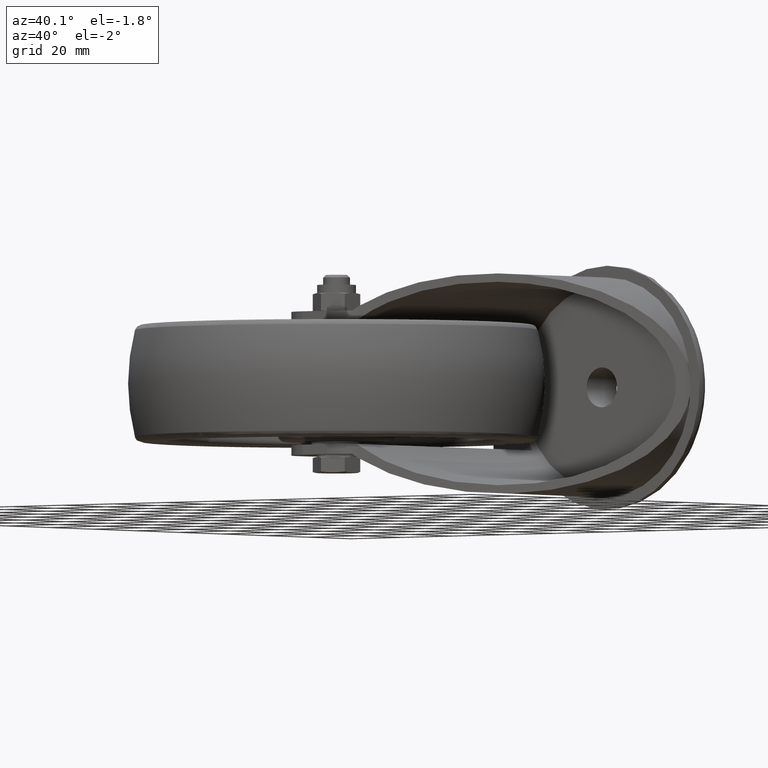
[diagram: clean part render]
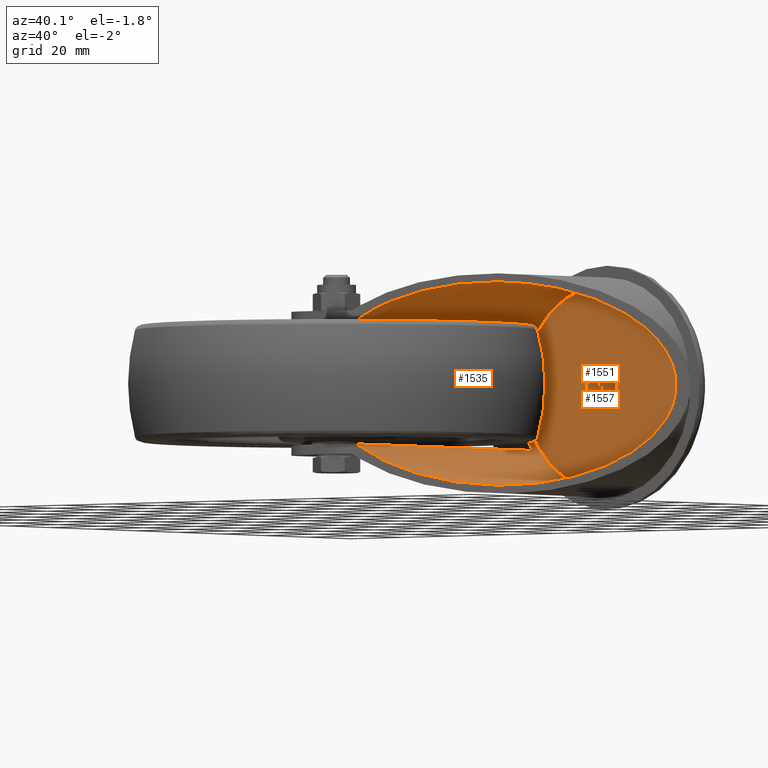
[diagram: same view with one multi-face feature highlighted, each face labeled with its STEP entity id]
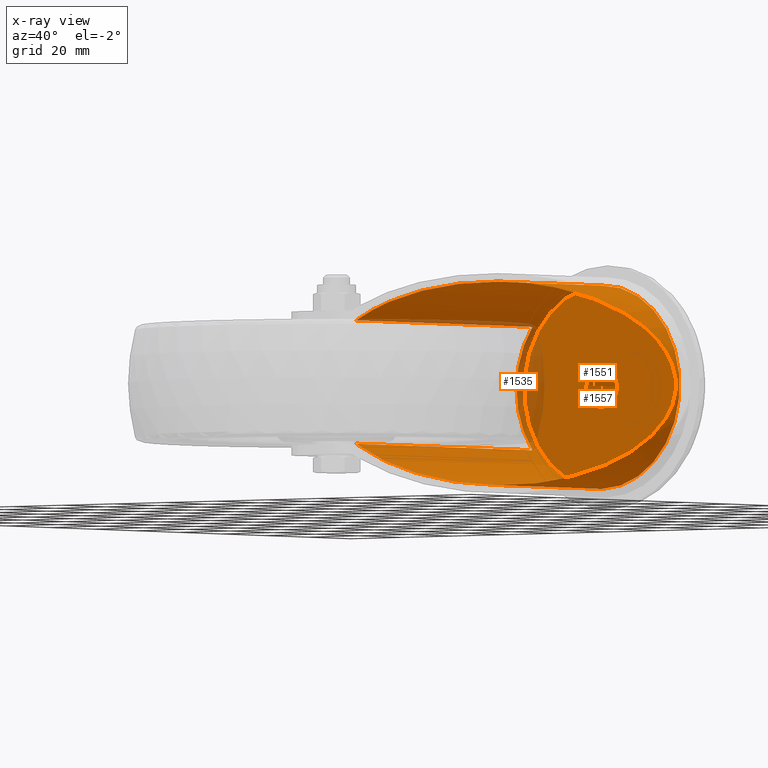
[diagram: x-ray of the same camera — body ghosted, the whole feature saturated]
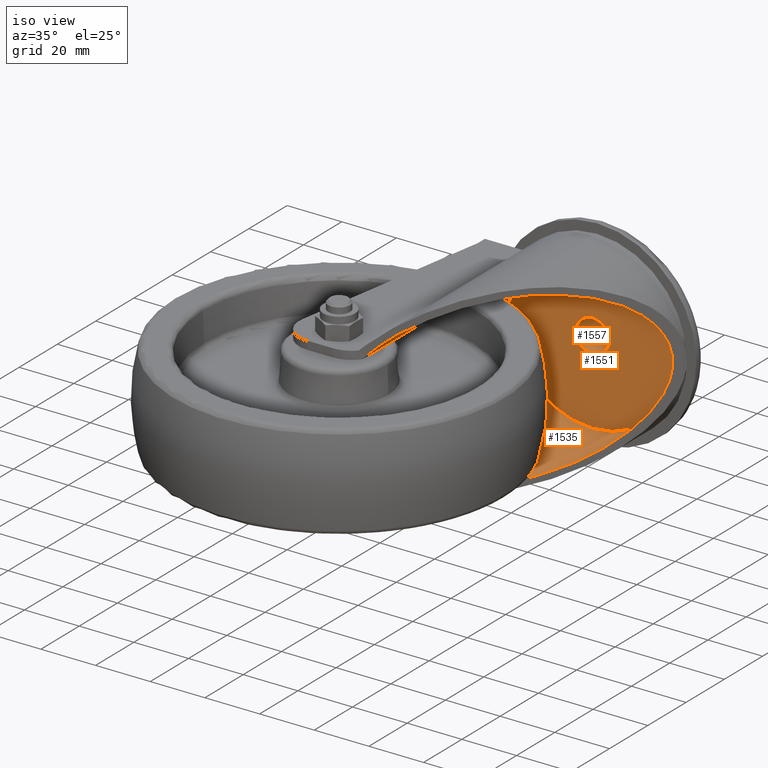
[diagram: same view with one multi-face feature highlighted, each face labeled with its STEP entity id]
A machine part, auxiliary view. The highlighted faces form ONE feature: a stepped (counterbored) hole: 2 coaxial cylindrical walls of radii 6 -> 30.5 mm joined by 1 annular planar shoulder face(s). The faces share edges in the B-rep.
The next image is the same camera in x-ray: the body ghosted and the whole hole feature saturated, so the bore chain is visible through the body.
A second angle (iso view) of the same feature is appended — it is thin or edge-on in the first view.
Their STEP definitions:
[1] entity #1535 (Cylinder):
#211=B_SPLINE_CURVE_WITH_KNOTS('',3,(#2491,#2492,#2493,#2494,#2495,#2496,
#2497),.UNSPECIFIED.,.F.,.F.,(4,3,4),(3.39512376483279E-17,0.000497924219683905,
0.00069095285595071),.UNSPECIFIED.);
#214=B_SPLINE_CURVE_WITH_KNOTS('',3,(#2527,#2528,#2529,#2530,#2531,#2532,
#2533),.UNSPECIFIED.,.F.,.F.,(4,3,4),(0.0418615516057193,0.0423792059004264,
0.042552800239739),.UNSPECIFIED.);
#224=FACE_OUTER_BOUND('',#330,.T.);
#330=EDGE_LOOP('',(#1091,#1092,#1093,#1094,#1095,#1096,#1097,#1098,#1099,
#1100));
#456=CIRCLE('',#1763,30.5);
#457=CIRCLE('',#1765,30.5);
#554=ELLIPSE('',#1764,55.7792992640996,30.5);
#555=ELLIPSE('',#1766,55.7792992640996,30.5);
#577=LINE('',#2574,#641);
#578=LINE('',#2577,#642);
#579=LINE('',#2580,#643);
#641=VECTOR('',#2030,30.5);
#642=VECTOR('',#2033,1000.);
#643=VECTOR('',#2036,1000.);
#689=VERTEX_POINT('',#2487);
#691=VERTEX_POINT('',#2490);
#696=VERTEX_POINT('',#2512);
#700=VERTEX_POINT('',#2525);
#713=VERTEX_POINT('',#2571);
#714=VERTEX_POINT('',#2573);
#715=VERTEX_POINT('',#2576);
#716=VERTEX_POINT('',#2578);
#829=EDGE_CURVE('',#691,#689,#211,.T.);
#839=EDGE_CURVE('',#696,#700,#214,.T.);
#858=EDGE_CURVE('',#713,#713,#456,.T.);
#859=EDGE_CURVE('',#713,#714,#577,.T.);
#860=EDGE_CURVE('',#691,#714,#554,.F.);
#861=EDGE_CURVE('',#689,#715,#578,.F.);
#862=EDGE_CURVE('',#715,#716,#457,.T.);
#863=EDGE_CURVE('',#716,#696,#579,.T.);
#864=EDGE_CURVE('',#714,#700,#555,.F.);
#1091=ORIENTED_EDGE('',*,*,#858,.F.);
#1092=ORIENTED_EDGE('',*,*,#859,.T.);
#1093=ORIENTED_EDGE('',*,*,#860,.F.);
#1094=ORIENTED_EDGE('',*,*,#829,.T.);
#1095=ORIENTED_EDGE('',*,*,#861,.T.);
#1096=ORIENTED_EDGE('',*,*,#862,.T.);
#1097=ORIENTED_EDGE('',*,*,#863,.T.);
#1098=ORIENTED_EDGE('',*,*,#839,.T.);
#1099=ORIENTED_EDGE('',*,*,#864,.F.);
#1100=ORIENTED_EDGE('',*,*,#859,.F.);
#1511=CYLINDRICAL_SURFACE('',#1762,30.5);
#1535=ADVANCED_FACE('',(#224),#1511,.F.);
#1762=AXIS2_PLACEMENT_3D('',#2570,#2026,#2027);
#1763=AXIS2_PLACEMENT_3D('',#2572,#2028,#2029);
#1764=AXIS2_PLACEMENT_3D('',#2575,#2031,#2032);
#1765=AXIS2_PLACEMENT_3D('',#2579,#2034,#2035);
#1766=AXIS2_PLACEMENT_3D('',#2581,#2037,#2038);
#2026=DIRECTION('center_axis',(0.,-1.,0.));
#2027=DIRECTION('ref_axis',(0.,0.,-1.));
#2028=DIRECTION('center_axis',(0.,-1.,0.));
#2029=DIRECTION('ref_axis',(0.,0.,-1.));
#2030=DIRECTION('',(0.,-1.,0.));
#2031=DIRECTION('center_axis',(0.83726467088855,-0.546797833647764,0.));
#2032=DIRECTION('ref_axis',(-0.546797833647764,-0.83726467088855,0.));
#2033=DIRECTION('',(0.,-1.,0.));
#2034=DIRECTION('center_axis',(0.,-1.,0.));
#2035=DIRECTION('ref_axis',(0.,0.,-1.));
#2036=DIRECTION('',(0.,-1.,0.));
#2037=DIRECTION('center_axis',(0.83726467088855,-0.546797833647764,0.));
#2038=DIRECTION('ref_axis',(-0.546797833647764,-0.83726467088855,0.));
#2487=CARTESIAN_POINT('',(12.7512886940357,-5.93099910346417,18.5));
#2490=CARTESIAN_POINT('',(13.0726467088855,-5.46797833647764,18.9137982563575));
#2491=CARTESIAN_POINT('Ctrl Pts',(13.0726467088855,-5.46797833647764,18.9137982563575));
#2492=CARTESIAN_POINT('Ctrl Pts',(12.9966415001639,-5.58435860016955,18.8176460474571));
#2493=CARTESIAN_POINT('Ctrl Pts',(12.9196914982063,-5.69689243829166,18.7191108666418));
#2494=CARTESIAN_POINT('Ctrl Pts',(12.8419888229573,-5.80586066030165,18.6182860796605));
#2495=CARTESIAN_POINT('Ctrl Pts',(12.8118660837037,-5.84810401071421,18.579199667786));
#2496=CARTESIAN_POINT('Ctrl Pts',(12.781629666646,-5.88981145101609,18.5397691613821));
#2497=CARTESIAN_POINT('Ctrl Pts',(12.7512886940357,-5.93099910346417,18.5));
#2512=CARTESIAN_POINT('',(12.7512886940357,-5.93099910346417,-18.5));
#2525=CARTESIAN_POINT('',(13.0726467088855,-5.46797833647763,-18.9137982563575));
#2527=CARTESIAN_POINT('Ctrl Pts',(12.7512886940357,-5.93099910346417,-18.5));
#2528=CARTESIAN_POINT('Ctrl Pts',(12.8327876692881,-5.82036482978139,-18.6068240606825));
#2529=CARTESIAN_POINT('Ctrl Pts',(12.9134148387263,-5.70614470970361,-18.7110447425603));
#2530=CARTESIAN_POINT('Ctrl Pts',(12.9929752662233,-5.58807312352023,-18.8125709306344));
#2531=CARTESIAN_POINT('Ctrl Pts',(13.0196556975227,-5.54847805166499,-18.8466175361042));
#2532=CARTESIAN_POINT('Ctrl Pts',(13.0462157376378,-5.50844981804031,-18.8803611234083));
#2533=CARTESIAN_POINT('Ctrl Pts',(13.0726467088855,-5.46797833647764,-18.9137982563575));
#2570=CARTESIAN_POINT('Origin',(37.,-10.,0.));
#2571=CARTESIAN_POINT('',(37.,79.5,30.5));
#2572=CARTESIAN_POINT('Origin',(37.,79.5,0.));
#2573=CARTESIAN_POINT('',(37.,31.1699275690242,30.5));
#2574=CARTESIAN_POINT('',(37.,-10.,30.5));
#2575=CARTESIAN_POINT('Origin',(37.,31.1699275690242,0.));
#2576=CARTESIAN_POINT('',(12.7512886940357,76.,18.5));
#2577=CARTESIAN_POINT('',(12.7512886940357,-10.,18.5));
#2578=CARTESIAN_POINT('',(12.7512886940357,76.,-18.5));
#2579=CARTESIAN_POINT('Origin',(37.,76.,0.));
#2580=CARTESIAN_POINT('',(12.7512886940357,-10.,-18.5));
#2581=CARTESIAN_POINT('Origin',(37.,31.1699275690242,0.));
[2] entity #1557 (Cylinder):
#246=FACE_OUTER_BOUND('',#361,.T.);
#361=EDGE_LOOP('',(#1200,#1201,#1202,#1203));
#461=CIRCLE('',#1775,6.00000000000001);
#473=CIRCLE('',#1800,6.00000000000001);
#595=LINE('',#2657,#659);
#659=VECTOR('',#2138,6.00000000000001);
#722=VERTEX_POINT('',#2600);
#732=VERTEX_POINT('',#2641);
#875=EDGE_CURVE('',#722,#722,#461,.T.);
#893=EDGE_CURVE('',#732,#732,#473,.F.);
#900=EDGE_CURVE('',#722,#732,#595,.T.);
#1200=ORIENTED_EDGE('',*,*,#875,.F.);
#1201=ORIENTED_EDGE('',*,*,#900,.T.);
#1202=ORIENTED_EDGE('',*,*,#893,.F.);
#1203=ORIENTED_EDGE('',*,*,#900,.F.);
#1518=CYLINDRICAL_SURFACE('',#1808,6.00000000000001);
#1557=ADVANCED_FACE('',(#246),#1518,.F.);
#1775=AXIS2_PLACEMENT_3D('',#2601,#2060,#2061);
#1800=AXIS2_PLACEMENT_3D('',#2642,#2116,#2117);
#1808=AXIS2_PLACEMENT_3D('',#2656,#2136,#2137);
#2060=DIRECTION('center_axis',(0.,-1.,0.));
#2061=DIRECTION('ref_axis',(0.,0.,-1.));
#2116=DIRECTION('center_axis',(0.,-1.,0.));
#2117=DIRECTION('ref_axis',(0.,0.,-1.));
#2136=DIRECTION('center_axis',(0.,-1.,0.));
#2137=DIRECTION('ref_axis',(0.,0.,-1.));
#2138=DIRECTION('',(0.,-1.,0.));
#2600=CARTESIAN_POINT('',(37.,93.5,6.00000000000001));
#2601=CARTESIAN_POINT('Origin',(37.,93.5,0.));
#2641=CARTESIAN_POINT('',(37.,79.5,6.00000000000001));
#2642=CARTESIAN_POINT('Origin',(37.,79.5,0.));
#2656=CARTESIAN_POINT('Origin',(37.,73.5,0.));
#2657=CARTESIAN_POINT('',(37.,73.5,6.00000000000001));
[3] entity #1551 (Plane):
#155=FACE_BOUND('',#353,.T.);
#182=PLANE('',#1799);
#240=FACE_OUTER_BOUND('',#352,.T.);
#352=EDGE_LOOP('',(#1172));
#353=EDGE_LOOP('',(#1173));
#456=CIRCLE('',#1763,30.5);
#473=CIRCLE('',#1800,6.00000000000001);
#713=VERTEX_POINT('',#2571);
#732=VERTEX_POINT('',#2641);
#858=EDGE_CURVE('',#713,#713,#456,.T.);
#893=EDGE_CURVE('',#732,#732,#473,.F.);
#1172=ORIENTED_EDGE('',*,*,#858,.T.);
#1173=ORIENTED_EDGE('',*,*,#893,.T.);
#1551=ADVANCED_FACE('',(#240,#155),#182,.T.);
#1763=AXIS2_PLACEMENT_3D('',#2572,#2028,#2029);
#1799=AXIS2_PLACEMENT_3D('',#2640,#2114,#2115);
#1800=AXIS2_PLACEMENT_3D('',#2642,#2116,#2117);
#2028=DIRECTION('center_axis',(0.,-1.,0.));
#2029=DIRECTION('ref_axis',(0.,0.,-1.));
#2114=DIRECTION('center_axis',(0.,-1.,0.));
#2115=DIRECTION('ref_axis',(0.,0.,-1.));
#2116=DIRECTION('center_axis',(0.,-1.,0.));
#2117=DIRECTION('ref_axis',(0.,0.,-1.));
#2571=CARTESIAN_POINT('',(37.,79.5,30.5));
#2572=CARTESIAN_POINT('Origin',(37.,79.5,0.));
#2640=CARTESIAN_POINT('Origin',(37.,79.5,0.));
#2641=CARTESIAN_POINT('',(37.,79.5,6.00000000000001));
#2642=CARTESIAN_POINT('Origin',(37.,79.5,0.));